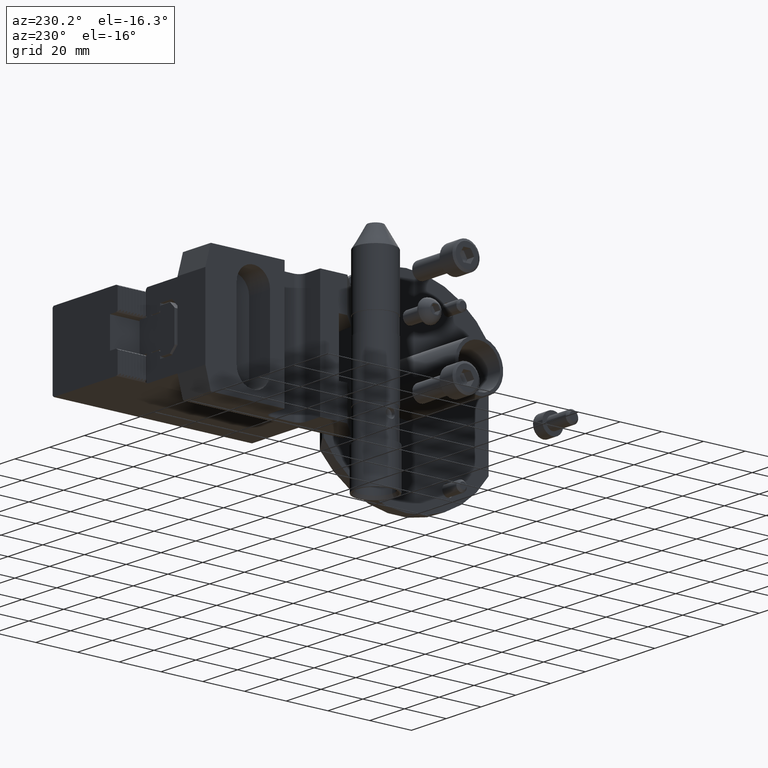
[diagram: clean part render]
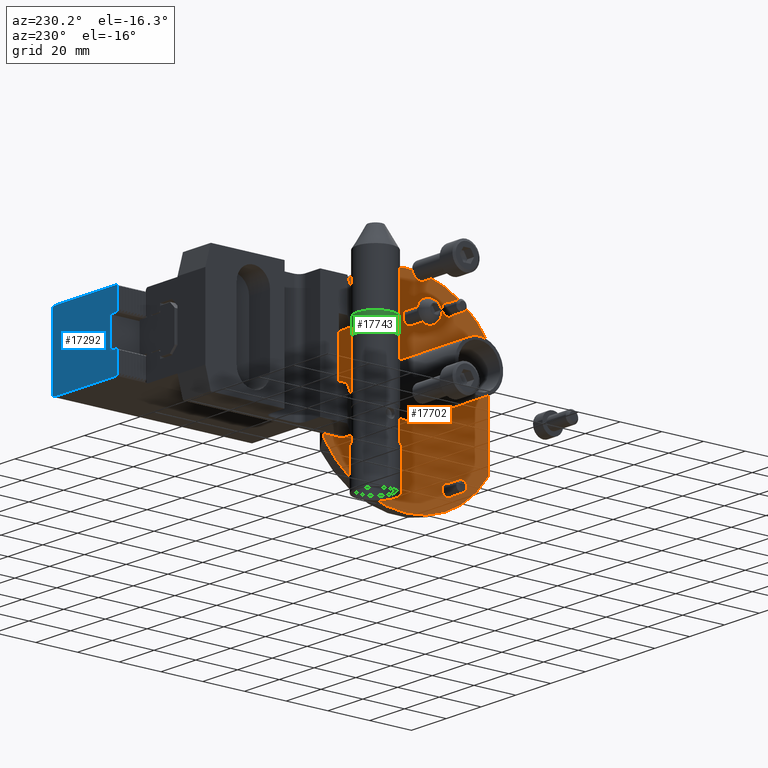
[diagram: same view with three faces highlighted in distinct colors, each labeled with its STEP entity id]
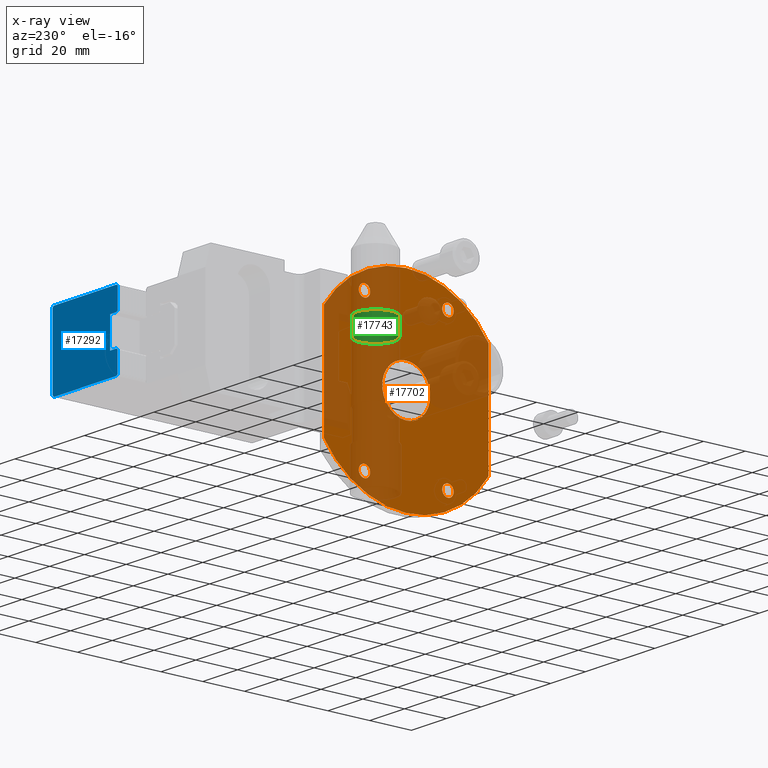
[diagram: x-ray of the same camera — body ghosted, the three highlighted faces saturated]
A machine part, auxiliary view with three faces highlighted in distinct colors.
The next image is the same camera in x-ray (body ghosted, the three faces saturated) — at least one of them is partly hidden behind the body in this view.
Their STEP definitions:

[orange] entity #17702 — the highlighted planar face has unit normal (-1, 0, 0).
#1548=LINE('',#27315,#3801);
#1549=LINE('',#27321,#3802);
#3801=VECTOR('',#22386,1000.);
#3802=VECTOR('',#22393,1000.);
#5169=PLANE('',#18962);
#8668=ORIENTED_EDGE('',*,*,#12042,.F.);
#8669=ORIENTED_EDGE('',*,*,#12045,.T.);
#8670=ORIENTED_EDGE('',*,*,#12046,.T.);
#8671=ORIENTED_EDGE('',*,*,#12044,.F.);
#8672=ORIENTED_EDGE('',*,*,#12038,.F.);
#8673=ORIENTED_EDGE('',*,*,#12047,.T.);
#8674=ORIENTED_EDGE('',*,*,#12032,.T.);
#8675=ORIENTED_EDGE('',*,*,#12048,.F.);
#8676=ORIENTED_EDGE('',*,*,#12049,.T.);
#12032=EDGE_CURVE('',#13998,#13997,#14747,.T.);
#12038=EDGE_CURVE('',#14001,#14002,#14748,.T.);
#12042=EDGE_CURVE('',#14005,#14005,#14751,.T.);
#12044=EDGE_CURVE('',#14002,#13997,#1548,.T.);
#12045=EDGE_CURVE('',#14007,#14007,#14753,.T.);
#12046=EDGE_CURVE('',#14008,#14008,#14754,.T.);
#12047=EDGE_CURVE('',#14001,#13998,#1549,.T.);
#12048=EDGE_CURVE('',#14009,#14009,#14755,.T.);
#12049=EDGE_CURVE('',#14010,#14010,#14756,.T.);
#13997=VERTEX_POINT('',#27286);
#13998=VERTEX_POINT('',#27288);
#14001=VERTEX_POINT('',#27298);
#14002=VERTEX_POINT('',#27300);
#14005=VERTEX_POINT('',#27310);
#14007=VERTEX_POINT('',#27318);
#14008=VERTEX_POINT('',#27320);
#14009=VERTEX_POINT('',#27323);
#14010=VERTEX_POINT('',#27325);
#14747=CIRCLE('',#18947,47.);
#14748=CIRCLE('',#18952,47.);
#14751=CIRCLE('',#18958,2.75);
#14753=CIRCLE('',#18963,2.75);
#14754=CIRCLE('',#18964,2.75);
#14755=CIRCLE('',#18965,2.75);
#14756=CIRCLE('',#18966,11.5);
#15549=EDGE_LOOP('',(#8668));
#15550=EDGE_LOOP('',(#8669));
#15551=EDGE_LOOP('',(#8670));
#15552=EDGE_LOOP('',(#8671,#8672,#8673,#8674));
#15553=EDGE_LOOP('',(#8675));
#15554=EDGE_LOOP('',(#8676));
#16654=FACE_BOUND('',#15549,.T.);
#16655=FACE_BOUND('',#15550,.T.);
#16656=FACE_BOUND('',#15551,.T.);
#16657=FACE_BOUND('',#15552,.T.);
#16658=FACE_BOUND('',#15553,.T.);
#16659=FACE_BOUND('',#15554,.T.);
#17702=ADVANCED_FACE('',(#16654,#16655,#16656,#16657,#16658,#16659),#5169,
 .T.);
#18947=AXIS2_PLACEMENT_3D('',#27287,#22352,#22353);
#18952=AXIS2_PLACEMENT_3D('',#27299,#22365,#22366);
#18958=AXIS2_PLACEMENT_3D('',#27309,#22378,#22379);
#18962=AXIS2_PLACEMENT_3D('',#27316,#22387,#22388);
#18963=AXIS2_PLACEMENT_3D('',#27317,#22389,#22390);
#18964=AXIS2_PLACEMENT_3D('',#27319,#22391,#22392);
#18965=AXIS2_PLACEMENT_3D('',#27322,#22394,#22395);
#18966=AXIS2_PLACEMENT_3D('',#27324,#22396,#22397);
#22352=DIRECTION('',(-1.,0.,0.));
#22353=DIRECTION('',(0.,0.,1.));
#22365=DIRECTION('',(1.,0.,0.));
#22366=DIRECTION('',(0.,0.,-1.));
#22378=DIRECTION('',(-1.,0.,0.));
#22379=DIRECTION('',(0.,6.98296672221876E-15,-1.));
#22386=DIRECTION('',(0.,0.,1.));
#22387=DIRECTION('',(-1.,0.,0.));
#22388=DIRECTION('',(0.,0.,1.));
#22389=DIRECTION('',(1.,0.,0.));
#22390=DIRECTION('',(0.,0.,-1.));
#22391=DIRECTION('',(1.,0.,0.));
#22392=DIRECTION('',(0.,6.98296672221876E-15,1.));
#22393=DIRECTION('',(0.,6.98296672221876E-15,1.));
#22394=DIRECTION('',(-1.,0.,0.));
#22395=DIRECTION('',(0.,0.,1.));
#22396=DIRECTION('',(1.,0.,0.));
#22397=DIRECTION('',(0.,0.,-1.));
#27286=CARTESIAN_POINT('',(-5.,39.5,25.4705712539001));
#27287=CARTESIAN_POINT('',(-5.,0.,0.));
#27288=CARTESIAN_POINT('',(-5.,-39.4999999999999,25.4705712538998));
#27298=CARTESIAN_POINT('',(-5.,-39.5,-25.4705712538998));
#27299=CARTESIAN_POINT('',(-5.,0.,0.));
#27300=CARTESIAN_POINT('',(-5.,39.5,-25.4705712539001));
#27309=CARTESIAN_POINT('',(-5.,-20.0000000000003,34.6410161513774));
#27310=CARTESIAN_POINT('',(-5.,-20.0000000000003,31.8910161513774));
#27315=CARTESIAN_POINT('',(-5.,39.5,-47.));
#27316=CARTESIAN_POINT('',(-5.,-1.64099717972141E-13,-47.));
#27317=CARTESIAN_POINT('',(-5.,20.,34.6410161513775));
#27318=CARTESIAN_POINT('',(-5.,20.,31.8910161513775));
#27319=CARTESIAN_POINT('',(-5.,-20.0000000000003,-34.6410161513774));
#27320=CARTESIAN_POINT('',(-5.,-20.0000000000003,-31.8910161513774));
#27321=CARTESIAN_POINT('',(-5.,-39.5,-47.));
#27322=CARTESIAN_POINT('',(-5.,20.,-34.6410161513775));
#27323=CARTESIAN_POINT('',(-5.,20.,-31.8910161513775));
#27324=CARTESIAN_POINT('',(-5.,0.,0.));
#27325=CARTESIAN_POINT('',(-5.,0.,-11.5));

[blue] entity #17292 — the highlighted planar face has unit normal (0, 1, 0).
#367=LINE('',#24878,#2620);
#758=LINE('',#25660,#3011);
#761=LINE('',#25666,#3014);
#763=LINE('',#25670,#3016);
#764=LINE('',#25673,#3017);
#765=LINE('',#25675,#3018);
#766=LINE('',#25677,#3019);
#767=LINE('',#25679,#3020);
#768=LINE('',#25680,#3021);
#769=LINE('',#25681,#3022);
#770=LINE('',#25683,#3023);
#771=LINE('',#25685,#3024);
#772=LINE('',#25687,#3025);
#773=LINE('',#25689,#3026);
#2620=VECTOR('',#20319,1000.);
#3011=VECTOR('',#20714,1000.);
#3014=VECTOR('',#20721,1000.);
#3016=VECTOR('',#20725,1000.);
#3017=VECTOR('',#20726,1000.);
#3018=VECTOR('',#20727,1000.);
#3019=VECTOR('',#20728,1000.);
#3020=VECTOR('',#20729,1000.);
#3021=VECTOR('',#20730,1000.);
#3022=VECTOR('',#20731,1000.);
#3023=VECTOR('',#20732,1000.);
#3024=VECTOR('',#20733,1000.);
#3025=VECTOR('',#20734,1000.);
#3026=VECTOR('',#20735,1000.);
#4772=PLANE('',#18523);
#6656=ORIENTED_EDGE('',*,*,#11230,.F.);
#6657=ORIENTED_EDGE('',*,*,#11231,.T.);
#6658=ORIENTED_EDGE('',*,*,#11232,.T.);
#6659=ORIENTED_EDGE('',*,*,#11233,.T.);
#6660=ORIENTED_EDGE('',*,*,#11234,.F.);
#6661=ORIENTED_EDGE('',*,*,#11225,.F.);
#6662=ORIENTED_EDGE('',*,*,#11235,.T.);
#6663=ORIENTED_EDGE('',*,*,#10834,.F.);
#6664=ORIENTED_EDGE('',*,*,#11228,.F.);
#6665=ORIENTED_EDGE('',*,*,#11236,.F.);
#6666=ORIENTED_EDGE('',*,*,#11237,.T.);
#6667=ORIENTED_EDGE('',*,*,#11238,.T.);
#6668=ORIENTED_EDGE('',*,*,#11239,.T.);
#6669=ORIENTED_EDGE('',*,*,#11240,.T.);
#10834=EDGE_CURVE('',#13193,#13194,#367,.T.);
#11225=EDGE_CURVE('',#13582,#13583,#758,.T.);
#11228=EDGE_CURVE('',#13584,#13193,#761,.T.);
#11230=EDGE_CURVE('',#13585,#13586,#763,.T.);
#11231=EDGE_CURVE('',#13585,#13587,#764,.T.);
#11232=EDGE_CURVE('',#13587,#13588,#765,.T.);
#11233=EDGE_CURVE('',#13588,#13589,#766,.T.);
#11234=EDGE_CURVE('',#13583,#13589,#767,.T.);
#11235=EDGE_CURVE('',#13582,#13194,#768,.T.);
#11236=EDGE_CURVE('',#13590,#13584,#769,.T.);
#11237=EDGE_CURVE('',#13590,#13591,#770,.T.);
#11238=EDGE_CURVE('',#13591,#13592,#771,.T.);
#11239=EDGE_CURVE('',#13592,#13593,#772,.T.);
#11240=EDGE_CURVE('',#13593,#13586,#773,.T.);
#13193=VERTEX_POINT('',#24877);
#13194=VERTEX_POINT('',#24879);
#13582=VERTEX_POINT('',#25659);
#13583=VERTEX_POINT('',#25661);
#13584=VERTEX_POINT('',#25667);
#13585=VERTEX_POINT('',#25671);
#13586=VERTEX_POINT('',#25672);
#13587=VERTEX_POINT('',#25674);
#13588=VERTEX_POINT('',#25676);
#13589=VERTEX_POINT('',#25678);
#13590=VERTEX_POINT('',#25682);
#13591=VERTEX_POINT('',#25684);
#13592=VERTEX_POINT('',#25686);
#13593=VERTEX_POINT('',#25688);
#15116=EDGE_LOOP('',(#6656,#6657,#6658,#6659,#6660,#6661,#6662,#6663,#6664,
#6665,#6666,#6667,#6668,#6669));
#16221=FACE_BOUND('',#15116,.T.);
#17292=ADVANCED_FACE('',(#16221),#4772,.T.);
#18523=AXIS2_PLACEMENT_3D('',#25669,#20723,#20724);
#20319=DIRECTION('',(-0.866025403784439,0.,-0.499999999999999));
#20714=DIRECTION('',(0.866025403784439,0.,-0.499999999999999));
#20721=DIRECTION('',(-1.,0.,3.67971646419323E-16));
#20723=DIRECTION('',(0.,1.,0.));
#20724=DIRECTION('',(0.,0.,1.));
#20725=DIRECTION('',(0.,0.,-1.));
#20726=DIRECTION('',(0.866025403784439,0.,0.499999999999999));
#20727=DIRECTION('',(1.,0.,0.));
#20728=DIRECTION('',(0.,0.,1.));
#20729=DIRECTION('',(1.,0.,-3.67971646419323E-16));
#20730=DIRECTION('',(3.67971646419323E-16,0.,1.));
#20731=DIRECTION('',(-0.707106781309963,0.,0.707106781063132));
#20732=DIRECTION('',(0.,0.,-1.));
#20733=DIRECTION('',(-0.707106781309964,0.,-0.707106781063132));
#20734=DIRECTION('',(-1.,0.,0.));
#20735=DIRECTION('',(-0.866025403784439,0.,0.499999999999999));
#24877=CARTESIAN_POINT('',(2.6,132.585364767134,17.5));
#24878=CARTESIAN_POINT('',(2.6,132.585364767134,17.5));
#24879=CARTESIAN_POINT('',(1.8169872981078,132.585364767134,17.0479274057837));
#25659=CARTESIAN_POINT('',(1.8169872981078,132.585364767134,7.45207259421635));
#25660=CARTESIAN_POINT('',(2.6,132.585364767134,6.99999999999999));
#25661=CARTESIAN_POINT('',(2.6,132.585364767134,6.99999999999999));
#25666=CARTESIAN_POINT('',(2.6,132.585364767134,17.5));
#25667=CARTESIAN_POINT('',(38.6,132.585364767134,17.5));
#25669=CARTESIAN_POINT('',(6.2,132.585364767134,-17.5));
#25670=CARTESIAN_POINT('',(1.81698729810781,132.585364767134,-17.5));
#25671=CARTESIAN_POINT('',(1.8169872981078,132.585364767134,-7.45207259421636));
#25672=CARTESIAN_POINT('',(1.8169872981078,132.585364767134,-17.0479274057837));
#25673=CARTESIAN_POINT('',(2.6,132.585364767134,-7.00000000000001));
#25674=CARTESIAN_POINT('',(2.6,132.585364767134,-7.00000000000001));
#25675=CARTESIAN_POINT('',(2.6,132.585364767134,-7.00000000000001));
#25676=CARTESIAN_POINT('',(6.2,132.585364767134,-7.00000000000001));
#25677=CARTESIAN_POINT('',(6.2,132.585364767134,-7.00000000000001));
#25678=CARTESIAN_POINT('',(6.2,132.585364767134,6.99999999999999));
#25679=CARTESIAN_POINT('',(2.6,132.585364767134,6.99999999999999));
#25680=CARTESIAN_POINT('',(1.81698729810781,132.585364767134,17.5));
#25681=CARTESIAN_POINT('',(39.2,132.585364767134,16.9000000002094));
#25682=CARTESIAN_POINT('',(39.2,132.585364767134,16.9000000002094));
#25683=CARTESIAN_POINT('',(39.2,132.585364767134,-16.9000000002094));
#25684=CARTESIAN_POINT('',(39.2,132.585364767134,-16.9000000002094));
#25685=CARTESIAN_POINT('',(39.2,132.585364767134,-16.9000000002094));
#25686=CARTESIAN_POINT('',(38.6,132.585364767134,-17.5));
#25687=CARTESIAN_POINT('',(2.6,132.585364767134,-17.5));
#25688=CARTESIAN_POINT('',(2.6,132.585364767134,-17.5));
#25689=CARTESIAN_POINT('',(2.6,132.585364767134,-17.5));

[green] entity #17743 — the highlighted cylindrical surface (bore or boss wall) has radius 8.75 mm, axis along (0, 0, -1).
#85=CYLINDRICAL_SURFACE('',#19034,8.75);
#8778=ORIENTED_EDGE('',*,*,#12096,.F.);
#8779=ORIENTED_EDGE('',*,*,#12094,.T.);
#12094=EDGE_CURVE('',#14046,#14046,#14782,.T.);
#12096=EDGE_CURVE('',#14048,#14048,#14784,.T.);
#14046=VERTEX_POINT('',#27496);
#14048=VERTEX_POINT('',#27502);
#14782=CIRCLE('',#19031,8.75);
#14784=CIRCLE('',#19035,8.75);
#15619=EDGE_LOOP('',(#8778));
#15620=EDGE_LOOP('',(#8779));
#16727=FACE_BOUND('',#15619,.T.);
#16728=FACE_BOUND('',#15620,.T.);
#17743=ADVANCED_FACE('',(#16727,#16728),#85,.T.);
#19031=AXIS2_PLACEMENT_3D('',#27495,#22544,#22545);
#19034=AXIS2_PLACEMENT_3D('',#27500,#22550,#22551);
#19035=AXIS2_PLACEMENT_3D('',#27501,#22552,#22553);
#22544=DIRECTION('',(-2.69630192214213E-33,-1.50059267631318E-17,1.));
#22545=DIRECTION('',(-5.78007273927946E-51,-1.,-1.50059267631318E-17));
#22550=DIRECTION('',(2.69630192214213E-33,1.50059267631318E-17,-1.));
#22551=DIRECTION('',(-5.78007273927946E-51,-1.,-1.50059267631318E-17));
#22552=DIRECTION('',(-2.69630192214213E-33,-1.50059267631318E-17,1.));
#22553=DIRECTION('',(-5.78007273927946E-51,-1.,-1.50059267631318E-17));
#27495=CARTESIAN_POINT('',(-59.5,60.1,-3.));
#27496=CARTESIAN_POINT('',(-59.5,51.35,-3.));
#27500=CARTESIAN_POINT('',(-59.5,60.1,46.7343783783784));
#27501=CARTESIAN_POINT('',(-59.5,60.1,5.));
#27502=CARTESIAN_POINT('',(-59.5,51.35,5.));